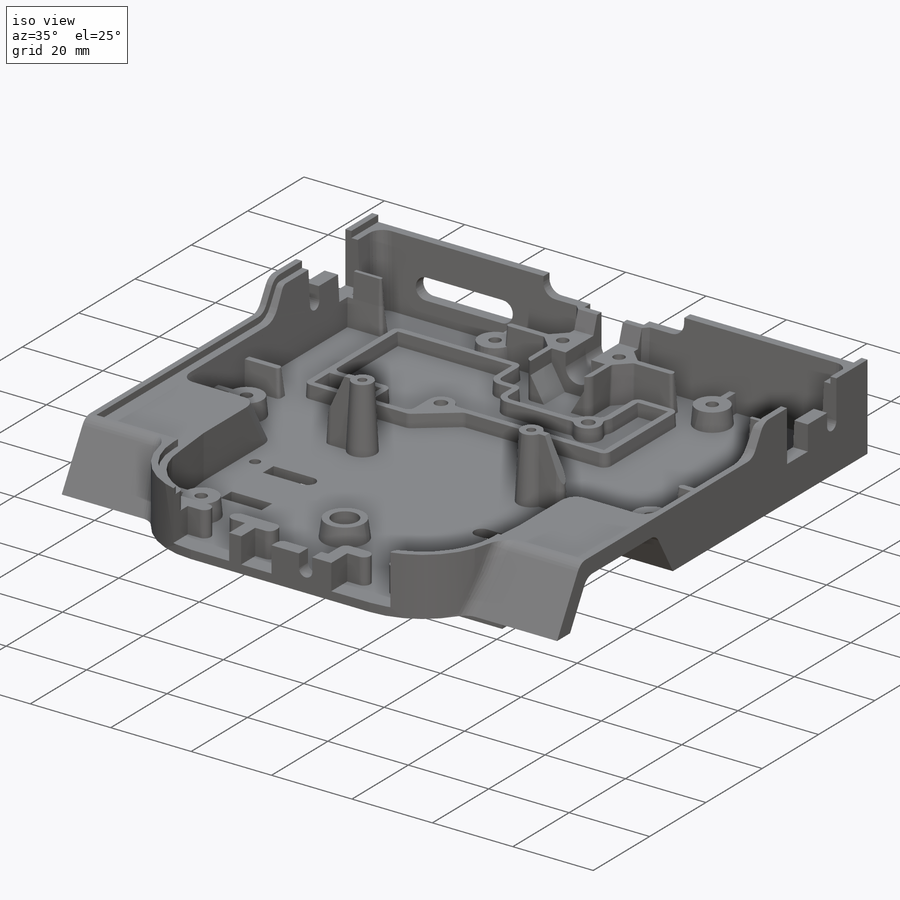
[diagram: iso view]
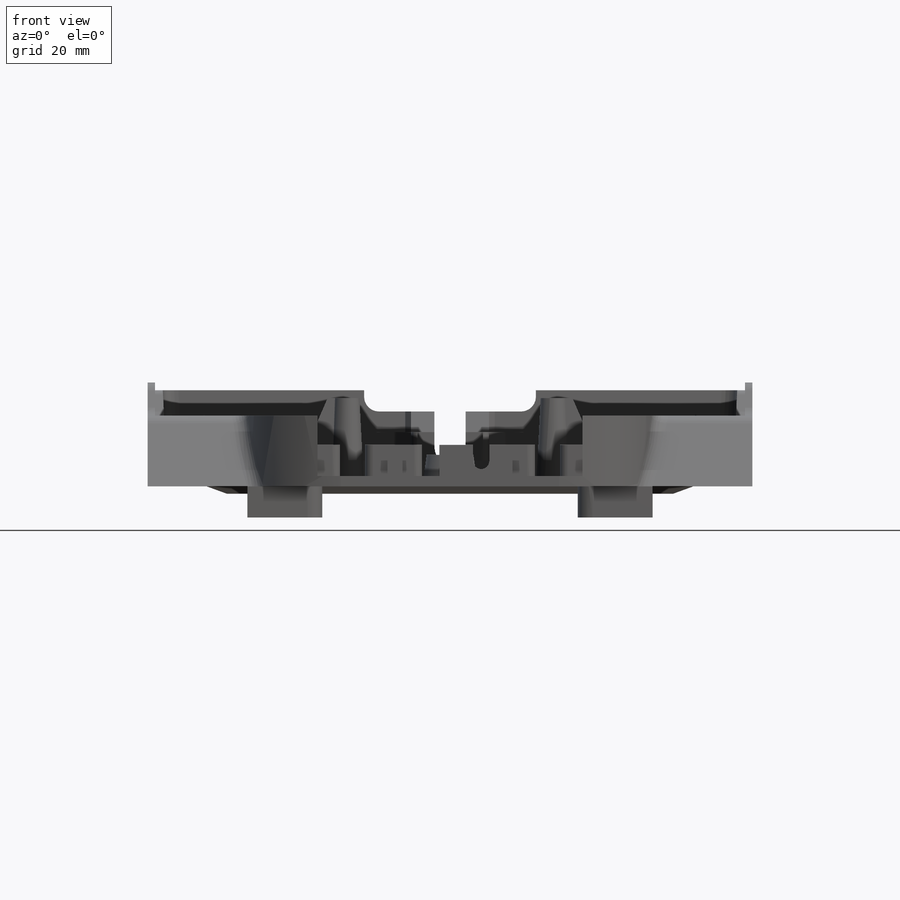
[diagram: front view]
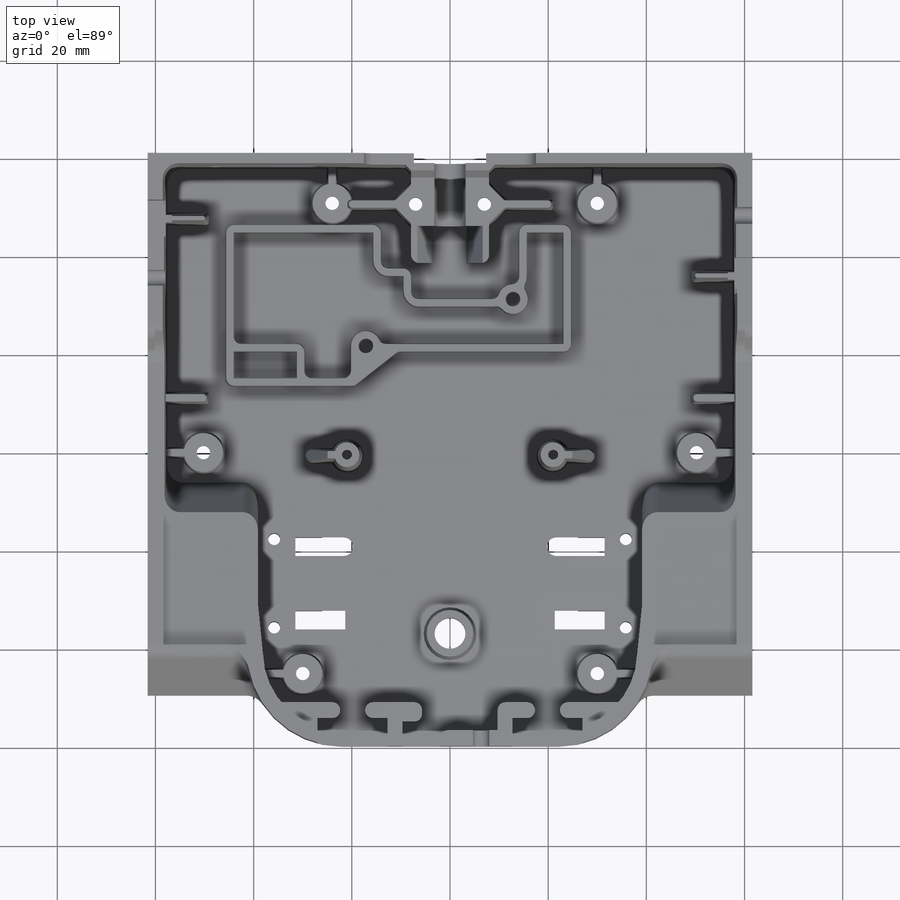
[diagram: top view]
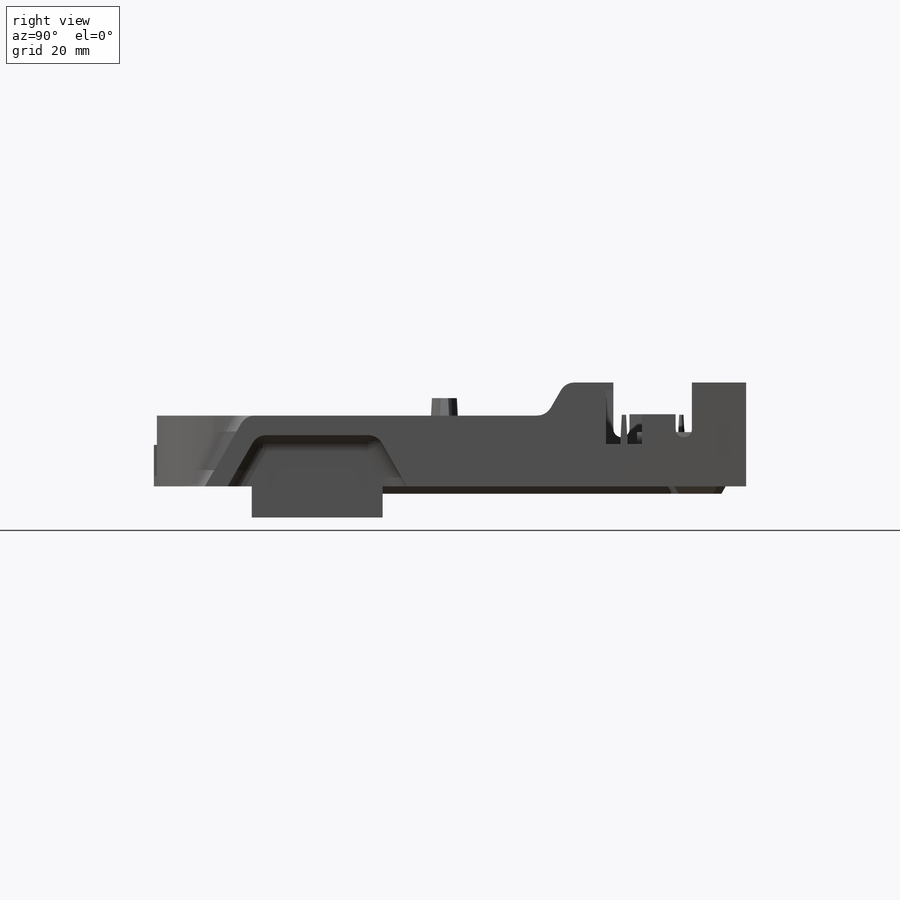
[diagram: right view]
SOLIDWORKS PART (.sldprt)
format: sldprt  version: not decoded by parser v0  size: 3,052,544 bytes
history: native  units: mm
features: sketch x51, extrude x24, cut_extrude x24, chamfer x9, plane x9, fillet x6, mirror x3, material x1, hole x1 (+16 scaffold rows collapsed)
feature tree (144):
  scaffold x16  (default folders/planes/origin — collapsed)
  material  "1080 Polyurethane"
  sketch  "Sketch2"  dims[c1.D1=123.19mm c1.D2=101.6mm c1.D3=20.32mm c1.D4=34.29mm c2.D2=101.6mm]
  extrude  "Extrude1"  Depth=2.1mm
  hole  "#2 Clearance Hole1"  Diameter=2.4384mm Depth=2.1mm
  sketch  "3DSketch1"  dims[D1=18.0mm D2=5.2125mm D3=5.461mm D4=5.461mm]
  sketch  "Sketch3"  dims[hole-wizard template sketch: 61 standard entries collapsed; hole parameters above]
  sketch  "Sketch7"  dims[c1.D3=2.4384mm c1.D5=3.81mm c1.D6=3.81mm c1.D1=10.16mm c1.D2=3.81mm c2.D3=8.509mm c2.D4=1.524mm c2.D6=15.24mm c2.D5=9.8425mm c3.D6=9.779mm c3.D7=3.81mm]
  cut_extrude  "Extrude2"  [1 undecoded]
  sketch  "Sketch55"  dims[c1.D1=50.8mm c1.D3=20.32mm c2.D1=19.05mm c2.D2=44.45mm]
  extrude  "Extrude7"  [1 undecoded]
  sketch  "Sketch68"
  sketch  "Sketch58"  dims[c1.D9=3.175mm c1.D1=10.414mm c1.D2=8.314mm c2.D2=120.0deg c2.D3=~11.110826mm c3.D3=120.0deg c3.D4=23.495mm c3.D1=10.414mm c3.D6=19.05mm c3.D7=~33.191246mm c4.D7=120.0deg c4.D8=25.0mm c4.D4=~65.718608mm c4.D10=24.5mm c4.D5=4.0mm]
  extrude  "Boss-Extrude2"  Depth=22.479mm
  sketch  "Sketch59"  dims[D1=1.0mm]
  extrude  "Boss-Extrude3"  Depth=2.1mm
  sketch  "Sketch60"  dims[D1=0.0mm D2=3.0mm]
  cut_extrude  "Cut-Extrude1"  Depth=3mm
  mirror  "Mirror1"
  sketch  "Sketch61"  dims[D1=2.1mm]
  extrude  "Boss-Extrude13"  [1 undecoded]
  sketch  "Sketch62"  dims[c1.D2=3.0mm c1.D1=0.0mm c2.D2=3.0mm]
  cut_extrude  "Cut-Extrude2"  Depth=3mm
  fillet  "Fillet1"  Radius=3.175mm
  sketch  "Sketch63"  dims[D1=22.225mm D2=15.875mm]
  extrude  "PivotBlock"  Depth=12.7mm
  sketch  "Sketch64"  dims[D2=6.35mm D1=7.874mm]
  cut_extrude  "Cut-Extrude3"  [1 undecoded]
  chamfer  "Chamfer1"  Distance=19.05mm Angle=3deg
  sketch  "Sketch65"  dims[D1=3.0mm D2=26.67mm D3=15.24mm]
  extrude  "Boss-Extrude7"  Depth=6.35mm
  sketch  "Sketch67"  dims[D1=0.0mm]
  extrude  "Boss-Extrude12"  [1 undecoded]
  mirror  "Mirror2"
  plane  "Plane1"  Offset=15.875mm
  sketch  "Sketch69"  dims[c1.D1=2.4384mm c1.D2=~9.097412mm c1.D3=5.08mm c2.D2=5.08mm c2.D1=16.925mm c3.D2=42.0mm c3.D5=7.0mm c4.D2=42.0mm c4.D4=0.75mm c4.D5=1.5875mm]
  extrude  "Stepper-Mount"  [1 undecoded]
  plane  "Plane2"
  sketch  "Sketch71"  dims[D1=1.5mm]
  cut_extrude  "Cut-Extrude4"  Depth=2.5mm
  mirror  "Mirror5"
  sketch  "Sketch72"  dims[D1=2.54mm]
  cut_extrude  "Cut-Extrude5"  [1 undecoded]
  sketch  "Sketch73"  dims[D1=1.0mm]
  extrude  "Boss-Extrude15"  [1 undecoded]
  chamfer  "Chamfer2"  Distance=10mm
  plane  "Plane3"
  fillet  "Fillet2"  Radius=3.175mm
  sketch  "Sketch75"  dims[D1=6.35mm D2=14.2875mm D3=25.4mm D4=2.1mm]
  cut_extrude  "Cut-Extrude6"  [1 undecoded]
  sketch  "Sketch76"  dims[c1.D1=3.0mm c1.D2=9.525mm c2.D1=3.0mm c2.D2=5.715mm c2.D3=3.175mm c2.D4=14.2875mm c3.D3=3.175mm c3.D4=2.54mm c3.D5=2.54mm]
  extrude  "Boss-Extrude17"  Depth=6.35mm
  sketch  "Sketch77"  dims[c1.D1=3.302mm c1.D2=6.35mm c1.D3=6.096mm c1.D4=7.366mm c1.D5=12.7mm c1.D6=4.191mm c2.D1=2.1mm]
  cut_extrude  "Cut-Extrude7"  Depth=11mm
  sketch  "Sketch81"  dims[D1=0.0mm]
  cut_extrude  "Cut-Extrude8"  [1 undecoded]
  sketch  "Sketch105"  dims[D1=5.0mm D2=3.175mm D3=4.0mm]
  extrude  "BOM-LockInRear"  [1 undecoded]
  fillet  "Fillet3"  Radius=1.5875mm
  sketch  "Sketch82"  dims[c1.D1=9.525mm c1.D2=19.05mm c2.D1=9.525mm c2.D2=19.05mm]
  cut_extrude  "Cut-Extrude9"  [1 undecoded]
  sketch  "Sketch83"  dims[c1.D1=9.525mm c1.D2=19.05mm c2.D1=19.05mm c2.D2=9.525mm]
  cut_extrude  "Cut-Extrude10"  [1 undecoded]
  sketch  "Sketch84"  dims[c1.D1=3.175mm c1.D2=12.7mm c1.D3=9.525mm c2.D1=3.175mm c2.D4=3.175mm c2.D5=1.5mm c2.D3=9.525mm]
  extrude  "PivotBlock-Ribs"  [1 undecoded]
  fillet  "Fillet4"  Radius=0.75mm
  plane  "Plane4"  Offset=3.175mm
  sketch  "Sketch85"  dims[c1.D1=6.0mm c1.D6=1.5875mm c1.D12=1.5875mm c1.D13=1.5875mm c1.D15=1.5875mm c1.D16=1.5875mm c1.D17=1.5875mm c1.D19=1.5875mm c1.D22=1.5875mm c1.D2=28.0mm c1.D3=18.0mm c1.D4=47.0mm c1.D5=12.0mm c2.D2=0.5mm c2.D3=0.5mm c2.D4=0.5mm c2.D5=0.5mm c2.D6=0.5mm c2.D7=0.5mm c2.D8=0.5mm c2.D9=0.5mm c2.D10=~11.305854mm c3.D10=0.0deg c4.D10=0.5mm c4.D11=0.5mm c4.D20=5.5mm c4.D21=12.9mm c4.D7=2.0mm c4.D14=1.5mm c4.D18=1.5mm]
  extrude  "PCB-Mount"  [1 undecoded]
  plane  "Plane5"  Offset=4.318mm
  sketch  "Sketch87"  dims[D1=9.525mm]
  extrude  "Bearing-Support"  [1 undecoded]
  sketch  "Sketch88"  dims[D1=6.2992mm]
  cut_extrude  "Cut-Extrude12"  [1 undecoded]
  sketch  "Sketch89"  dims[c1.D1=1.5mm c1.D2=8.0mm c1.D3=35.0mm c2.D2=12.0mm]
  extrude  "Wall-Supports"  [1 undecoded]
  sketch  "Sketch90"  dims[D3=2.74mm D1=6.37mm D2=7.0mm]
  cut_extrude  "Cut-Extrude13"  Depth=5mm
  sketch  "Sketch91"  dims[D1=16.0mm D2=2.0mm]
  cut_extrude  "PivotClearance"  [1 undecoded]
  fillet  "Fillet5"  Radius=0.75mm
  sketch  "Sketch94"
  cut_extrude  "Cut-Extrude15"  [1 undecoded]
  sketch  "Sketch95"  dims[D1=2.032mm]
  cut_extrude  "Cut-Extrude16"  Depth=12.7mm
  sketch  "Sketch103"  dims[D1=5.0mm]
  extrude  "Boss-Extrude25"  Depth=1.5mm
  sketch  "Sketch96"  dims[D1=2.032mm]
  cut_extrude  "Cut-Extrude17"  [1 undecoded]
  sketch  "Sketch97"  dims[D2=14.732mm D1=0.127mm]
  extrude  "Boss-Extrude22"  Depth=2.1mm
  sketch  "Sketch99"
  cut_extrude  "Pivot-Clearance"  [1 undecoded]
  chamfer  "Chamfer3"  Distance=17.486mm Angle=3deg
  sketch  "Sketch100"  dims[D1=11.548mm]
  cut_extrude  "PivotBolt-Clearance"  Depth=7.5mm
  chamfer  "Chamfer4"  Distance=8.514mm Angle=15deg
  fillet  "Fillet6"  Radius=3.175mm
  sketch  "Sketch101"  dims[c1.D3=0.5mm c1.D4=7.0mm c1.D5=7.0mm c1.D6=12.0mm c1.D7=12.0mm c2.D3=3.5mm c2.D1=1.5mm c2.D2=1.5mm c3.D1=3.5mm c3.D2=3.5mm c3.D8=2.0mm c3.D9=2.0mm c3.D10=2.0mm]
  extrude  "StrengthRibs-Chassis"  Depth=1.5mm
  chamfer  "Chamfer5"  Distance=1.5mm Angle=30deg
  chamfer  "Chamfer7"  Distance=1.5mm Angle=30deg
  chamfer  "Chamfer6"  Distance=1.5mm Angle=70deg
  sketch  "Sketch104"  dims[D1=19.05mm D2=5.08mm D3=36.83mm]
  cut_extrude  "FFC-Passthrough"  [1 undecoded]
  sketch  "Sketch107"  dims[c1.D1=5.0mm c1.D2=5.0mm c1.D3=0.0mm c1.D4=0.0mm c2.D3=0.0mm c2.D4=0.0mm]
  extrude  "BOM-LockIn"  Depth=6mm
  plane  "Plane6"
  sketch  "Sketch108"  dims[D1=0.0mm]
  extrude  "Boss-Extrude29"  [1 undecoded]
  plane  "Plane7"
  sketch  "Sketch109"  dims[D1=0.0mm]
  extrude  "Boss-Extrude30"  [1 undecoded]
  sketch  "Sketch110"  dims[c1.D2=3.0mm c1.D3=14.732mm c1.D1=35.0mm c2.D2=~4.198199mm]
  cut_extrude  "Cut-Extrude22"  [1 undecoded]
  plane  "Plane8"  Offset=6.35mm
  sketch  "Sketch111"  dims[c1.D3=8.0mm c1.D4=2.74mm c1.D8=8.0mm c1.D9=4.0mm c1.D10=8.0mm c1.D12=4.0mm c1.D13=8.0mm c1.D1=45.0mm c1.D2=30.0mm c1.D5=~3.843168mm c2.D5=15.0deg c2.D6=1.5mm c2.D7=4.0mm c2.D9=30.0mm c2.D11=4.0mm c2.D12=1.5mm c3.D5=1.5mm c3.D14=6.5mm c3.D15=7.5mm c3.D13=24.0mm]
  extrude  "ScrewBoss-RearCover"  [1 undecoded]
  sketch  "Sketch112"  dims[D1=6.096mm]
  cut_extrude  "ScrewBoss-HeadClearance"  Depth=2mm
  sketch  "Sketch113"  dims[D1=2.74mm]
  cut_extrude  "ScrewBoss-Hole"  [1 undecoded]
  sketch  "Sketch114"  dims[D1=2.0mm D2=2.0mm]
  extrude  "Boss-Extrude31"  [1 undecoded]
  chamfer  "Chamfer8"  Distance=1.5mm Angle=30deg
  plane  "Plane9"
  sketch  "Sketch116"  dims[D1=1.5mm D2=10.0mm]
  cut_extrude  "Cut-Extrude23"  Depth=10mm
  chamfer  "Chamfer9"  Distance=1.175mm Angle=45deg Thickness=1.6002mm
decode coverage: 83 of 118 modeling features carry decoded parameters
note: ~ marks probable driven/reference dimensions
note: 29 parameter values undecoded
summary: no parameter record found for 29 features
note: suppression state not decoded; provenance and decode notes live in map.json
